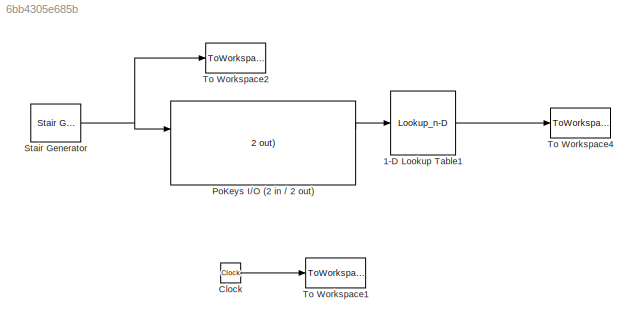
MODEL slx_6bb4305e685b
KIND model
CONFIG AbsTol = auto
CONFIG EnableMultiTasking = off
CONFIG FixedStep = auto
CONFIG MaxStep = auto
CONFIG MinStep = auto
CONFIG RelTol = 1e-3
CONFIG SampleTimeConstraint = Unconstrained
CONFIG SolverName = VariableStepAuto
CONFIG StartTime = 0.0
CONFIG StopTime = 140
BLOCK [Lookup_n-D] 1-D Lookup Table1
  BreakpointsForDimension1 = [0.83, 3.52, 6]
  InputPortMap = u0
  InternalRulePriority = Speed
  NumberOfTableDimensions = 1
  Ports = [1, 1]
  RndMeth = Simplest
  SampleTime = 0.1
  Table = [177, 90, 14]
BLOCK [Clock] Clock
BLOCK [Reference] PoKeys I//O (2 in // 2 out)  REF=PoKeysIOInterface/PoKeys I//O (2 in // 2 out)
  Ports = [2, 2]
  SourceBlock = PoKeysIOInterface/PoKeys I//O (2 in // 2 out)
  SourceProductName = PoKeys I/O interface
  SourceType = Pendl device
BLOCK [Reference] Stair Generator  REF=powerlib_meascontrol/Pulse & Signal
Generators/Stair
Generator
  Ports = [0, 1]
  SourceBlock = powerlib_meascontrol/Pulse & Signal\nGenerators/Stair\nGenerator
  SourceProductBaseCode = PS
  SourceType = Stair Generator
BLOCK [ToWorkspace] To Workspace1
  FixptAsFi = on
  MaxDataPoints = inf
  Ports = [1]
  SampleTime = -1
  VariableName = time
BLOCK [ToWorkspace] To Workspace2
  FixptAsFi = on
  MaxDataPoints = inf
  Ports = [1]
  SampleTime = -1
  VariableName = vhod
BLOCK [ToWorkspace] To Workspace4
  FixptAsFi = on
  MaxDataPoints = inf
  Ports = [1]
  SampleTime = 0.1
  SaveFormat = Timeseries
  VariableName = izhod
LINE 1-D Lookup Table1:1 -> To Workspace4:1
LINE Clock:1 -> To Workspace1:1
LINE PoKeys I//O (2 in // 2 out):1 -> 1-D Lookup Table1:1
NET Stair Generator:1 -> PoKeys I//O (2 in // 2 out):1, To Workspace2:1
note: NET lines group one-source signal fan-out (src -> all destinations, sorted); 1:1 wires keep LINE
